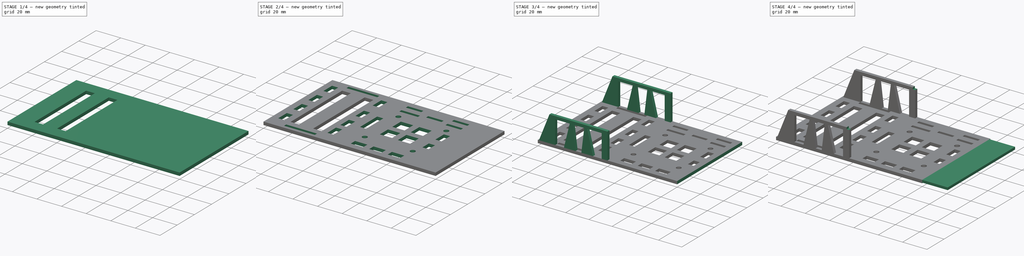
[diagram: build sequence overview — one tinted view per stage of 4, left to right]
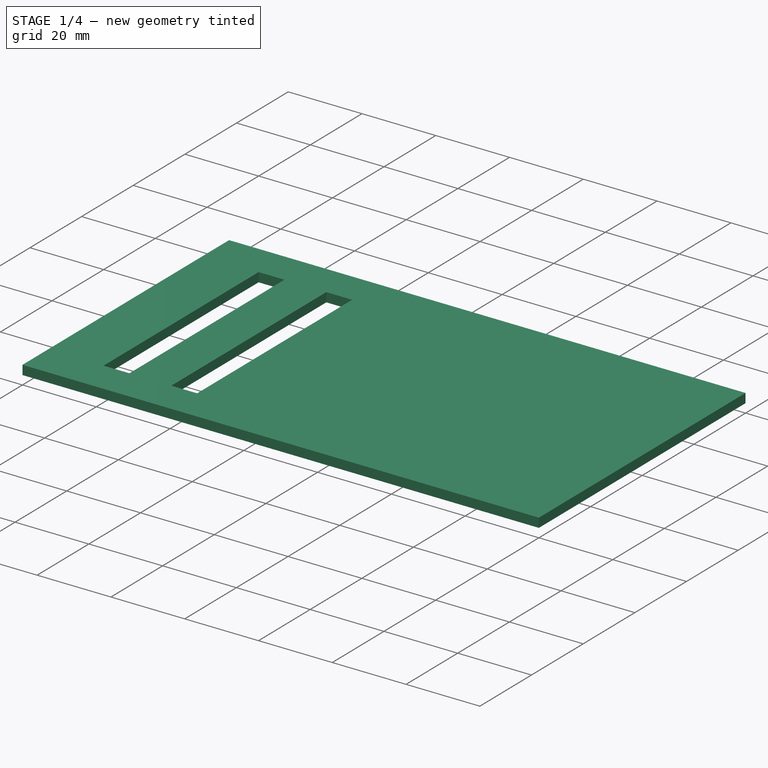
[diagram: stage 1 of 4 — iso view after this stage's code; geometry added in this stage tinted green]
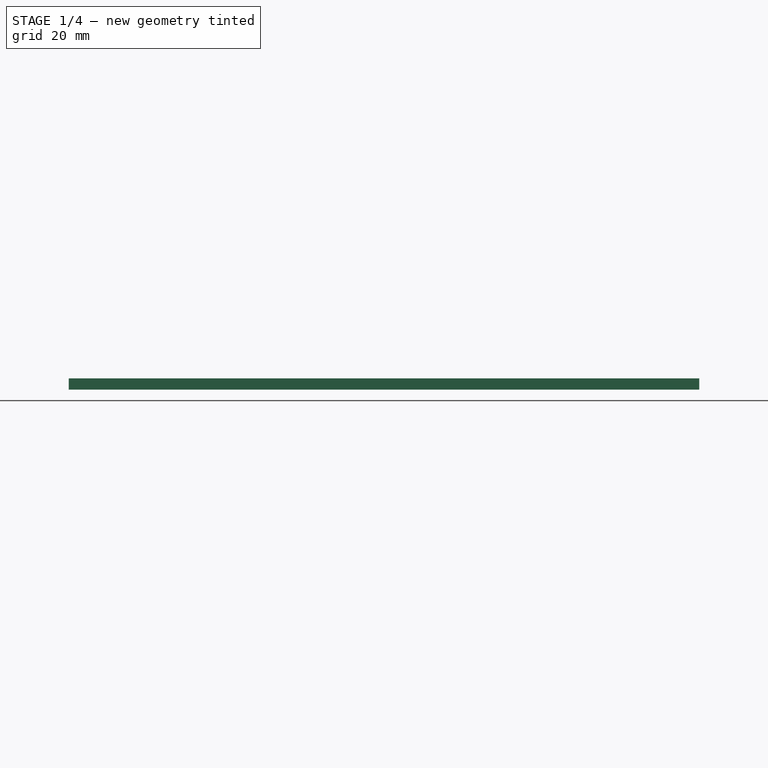
[diagram: stage 1 of 4 — front view after this stage's code; geometry added in this stage tinted green]
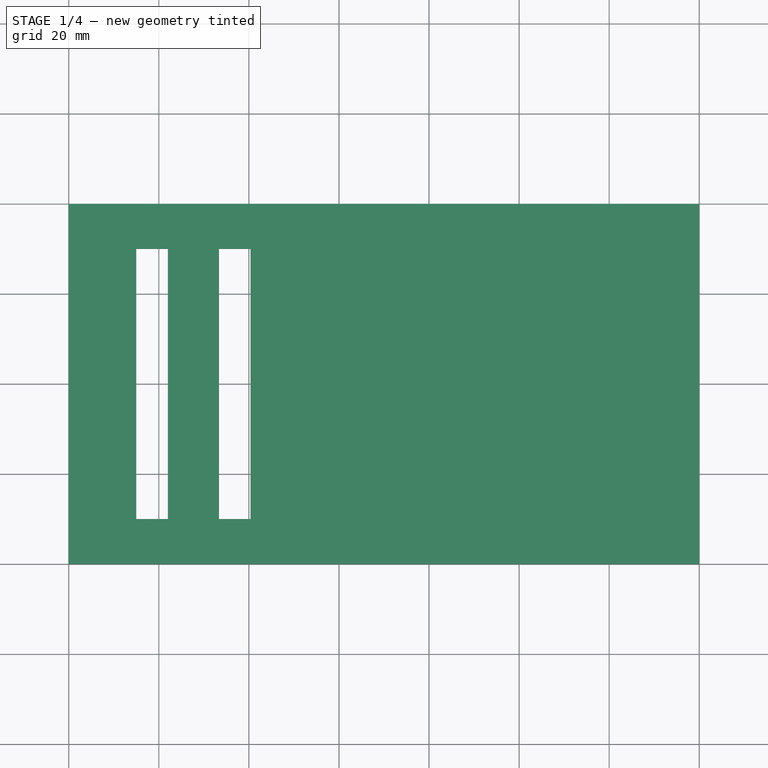
[diagram: stage 1 of 4 — top view after this stage's code; geometry added in this stage tinted green]
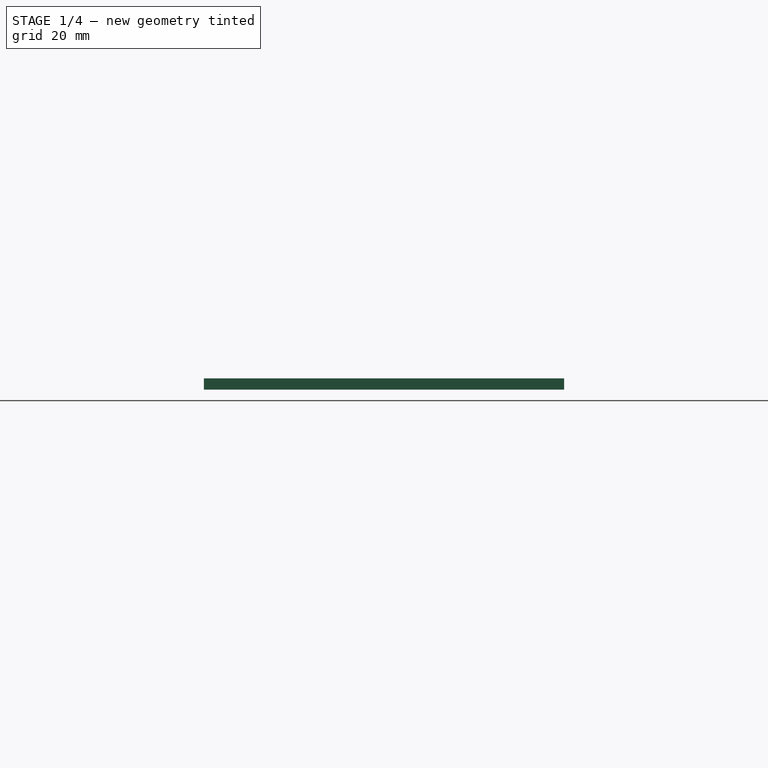
[diagram: stage 1 of 4 — right view after this stage's code; geometry added in this stage tinted green]
FCSTD DOCUMENT  (FreeCAD 0.19RUnknown)
Label: electro-holder
License: All rights reserved
LicenseURL: http://en.wikipedia.org/wiki/All_rights_reserved
objects: Sketcher::SketchObject×9, PartDesign::Pocket×5, PartDesign::Pad×4, PartDesign::Body×1
note: 28 computed .brp shape members not serialized (recipe doc carries the construction recipe); baked Part::Feature solids carry a one-line shape summary decoded from their .brp

FEATURE [Sketcher::SketchObject] Sketch
  FullyConstrained = false
  MapMode = 5
  Support = -> [XY_Plane]
  sketch-geometry (4):
    g0: LineSegment StartX=-60 StartY=0 StartZ=0 EndX=80 EndY=0 EndZ=0
    g1: LineSegment StartX=80 StartY=0 StartZ=0 EndX=80 EndY=80 EndZ=0
    g2: LineSegment StartX=80 StartY=80 StartZ=0 EndX=-60 EndY=80 EndZ=0
    g3: LineSegment StartX=-60 StartY=80 StartZ=0 EndX=-60 EndY=0 EndZ=0
  constraints (9):
    c: Coincident(g0,g1)
    c: Coincident(g1,g2)
    c: Coincident(g2,g3)
    c: Coincident(g3,g0)
    c: Horizontal(g0)
    c: Horizontal(g2)
    c: Vertical(g1)
    c: Vertical(g3)
    c: PointOnObject(g0,g-1)
FEATURE [PartDesign::Pad] Pad  label="GroundPlate"
  Direction = (1,1,1)
  Length = 2.5
  Length2 = 100
  Profile = -> Sketch
  Type = 0
FEATURE [Sketcher::SketchObject] Sketch001  label="Pin rows"
  FullyConstrained = false
  MapMode = 5
  Placement = pos=(0,0,0) rot=(1,0,0;3.14159rad)
  Support = -> [Pad]
  sketch-geometry (8):
    g0: LineSegment StartX=-45 StartY=-10 StartZ=0 EndX=-38 EndY=-10 EndZ=0
    g1: LineSegment StartX=-38 StartY=-10 StartZ=0 EndX=-38 EndY=-70 EndZ=0
    g2: LineSegment StartX=-38 StartY=-70 StartZ=0 EndX=-45 EndY=-70 EndZ=0
    g3: LineSegment StartX=-45 StartY=-70 StartZ=0 EndX=-45 EndY=-10 EndZ=0
    g4: LineSegment StartX=-26.64 StartY=-70 StartZ=0 EndX=-19.64 EndY=-70 EndZ=0
    g5: LineSegment StartX=-19.64 StartY=-70 StartZ=0 EndX=-19.64 EndY=-10 EndZ=0
    g6: LineSegment StartX=-19.64 StartY=-10 StartZ=0 EndX=-26.64 EndY=-10 EndZ=0
    g7: LineSegment StartX=-26.64 StartY=-10 StartZ=0 EndX=-26.64 EndY=-70 EndZ=0
  constraints (22):
    c: Coincident(g0,g1)
    c: Coincident(g1,g2)
    c: Coincident(g2,g3)
    c: Coincident(g3,g0)
    c: Horizontal(g0)
    c: Horizontal(g2)
    c: Vertical(g1)
    c: Vertical(g3)
    c: Coincident(g4,g5)
    c: Coincident(g5,g6)
    c: Coincident(g6,g7)
    c: Coincident(g7,g4)
    c: Horizontal(g4)
    c: Horizontal(g6)
    c: Vertical(g5)
    c: Vertical(g7)
    c: DistanceX(g6,g5) = 7
    c: DistanceX(g0,g0) = 7
    c: DistanceX(g0,g5) = 25.36
    c: DistanceY(g0,g6) = 0
    c: DistanceY(g2,g0) = 60
    c: Horizontal(g2,g4)
FEATURE [PartDesign::Pocket] Pocket  label="ESP32"
  BaseFeature = -> Pad
  Length = 2.5
  Length2 = 100
  Profile = -> Sketch001
  Type = 0
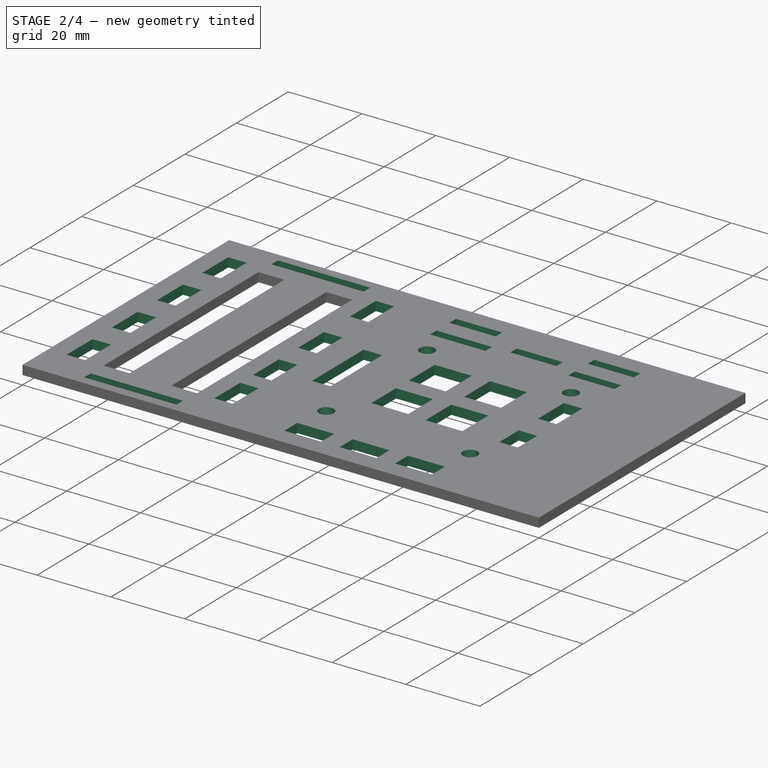
[diagram: stage 2 of 4 — iso view after this stage's code; geometry added in this stage tinted green]
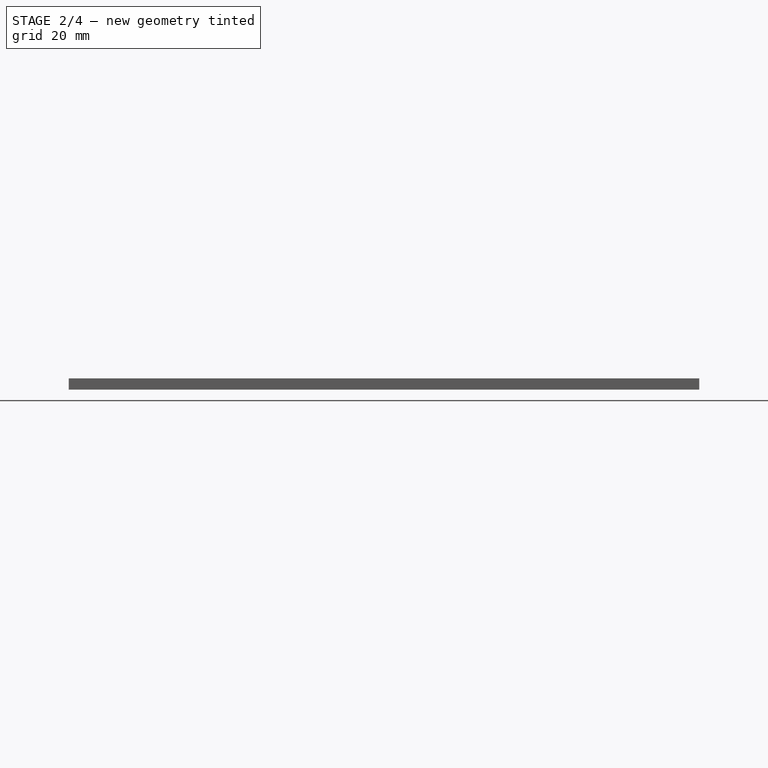
[diagram: stage 2 of 4 — front view after this stage's code; geometry added in this stage tinted green]
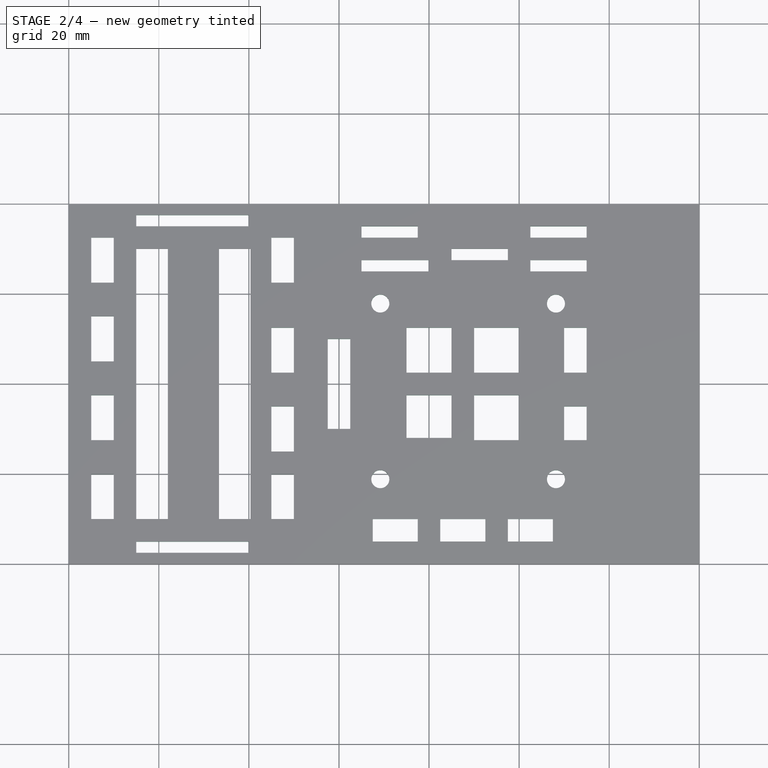
[diagram: stage 2 of 4 — top view after this stage's code; geometry added in this stage tinted green]
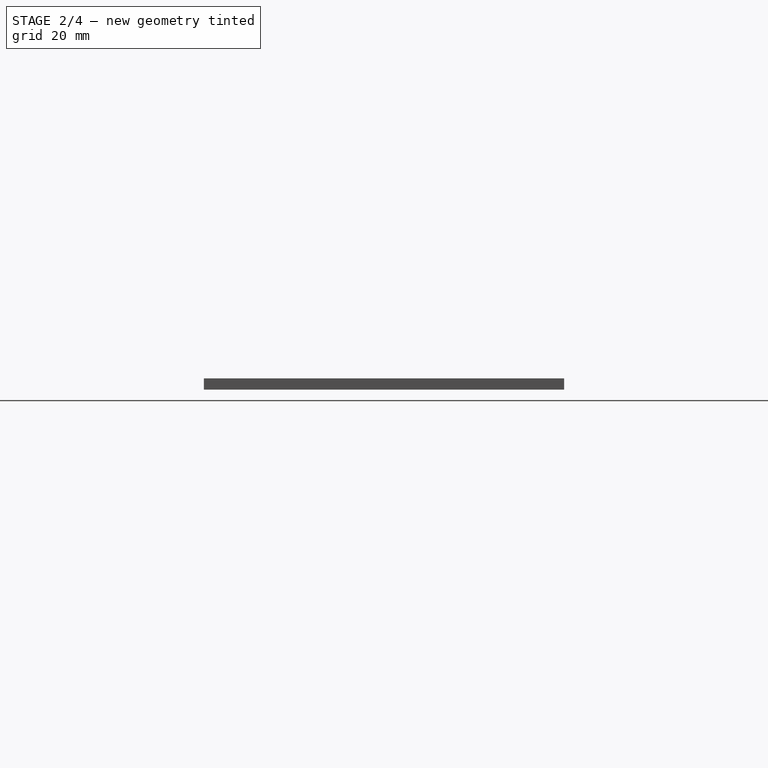
[diagram: stage 2 of 4 — right view after this stage's code; geometry added in this stage tinted green]
FEATURE [Sketcher::SketchObject] Sketch002
  FullyConstrained = false
  MapMode = 5
  Placement = pos=(0,0,0) rot=(1,0,0;3.14159rad)
  Support = -> [Pocket]
  sketch-geometry (7):
    g0: Circle CenterX=48.183 CenterY=-57.8502 CenterZ=0 NormalX=0 NormalY=0 NormalZ=1 AngleXU=0 Radius=2.00257
    g1: Circle CenterX=9.18301 CenterY=-57.8502 CenterZ=0 NormalX=0 NormalY=0 NormalZ=1 AngleXU=0 Radius=2.00257
    g2: LineSegment StartX=48.183 StartY=-57.8502 StartZ=0 EndX=9.18301 EndY=-57.8502 EndZ=0
    g3: Circle CenterX=48.183 CenterY=-18.8502 CenterZ=0 NormalX=0 NormalY=0 NormalZ=1 AngleXU=0 Radius=2.00257
    g4: LineSegment StartX=48.183 StartY=-57.8502 StartZ=0 EndX=48.183 EndY=-18.8502 EndZ=0
    g5: Circle CenterX=9.18301 CenterY=-18.8502 CenterZ=0 NormalX=0 NormalY=0 NormalZ=1 AngleXU=0 Radius=2.00257
    g6: LineSegment StartX=48.183 StartY=-18.8502 StartZ=0 EndX=9.18301 EndY=-18.8502 EndZ=0
  constraints (12):
    c: Coincident(g0,g2)
    c: Coincident(g1,g2)
    c: Distance(g2) = 39
    c: Angle(g2) = -3.14159
    c: Coincident(g0,g4)
    c: Coincident(g3,g4)
    c: Equal(g4,g2)
    c: Perpendicular(g4,g2)
    c: Coincident(g3,g6)
    c: Coincident(g5,g6)
    c: Equal(g2,g6)
    c: Parallel(g6,g2)
FEATURE [PartDesign::Pocket] Pocket001  label="HW-095"
  BaseFeature = -> Pocket
  Length = 2.5
  Length2 = 100
  Profile = -> Sketch002
  Type = 0
FEATURE [Sketcher::SketchObject] Sketch003
  FullyConstrained = false
  MapMode = 5
  Placement = pos=(0,0,0) rot=(1,0,0;3.14159rad)
  Support = -> [Pocket001]
  sketch-geometry (100):
    g0: LineSegment StartX=-55 StartY=-10 StartZ=0 EndX=-50 EndY=-10 EndZ=0
    g1: LineSegment StartX=-50 StartY=-10 StartZ=0 EndX=-50 EndY=-20 EndZ=0
    g2: LineSegment StartX=-50 StartY=-20 StartZ=0 EndX=-55 EndY=-20 EndZ=0
    g3: LineSegment StartX=-55 StartY=-20 StartZ=0 EndX=-55 EndY=-10 EndZ=0
    g4: LineSegment StartX=-55 StartY=-27.5 StartZ=0 EndX=-50 EndY=-27.5 EndZ=0
    g5: LineSegment StartX=-50 StartY=-27.5 StartZ=0 EndX=-50 EndY=-37.5 EndZ=0
    g6: LineSegment StartX=-50 StartY=-37.5 StartZ=0 EndX=-55 EndY=-37.5 EndZ=0
    g7: LineSegment StartX=-55 StartY=-37.5 StartZ=0 EndX=-55 EndY=-27.5 EndZ=0
    g8: LineSegment StartX=-55 StartY=-45 StartZ=0 EndX=-50 EndY=-45 EndZ=0
    g9: LineSegment StartX=-50 StartY=-45 StartZ=0 EndX=-50 EndY=-55 EndZ=0
    g10: LineSegment StartX=-50 StartY=-55 StartZ=0 EndX=-55 EndY=-55 EndZ=0
    g11: LineSegment StartX=-55 StartY=-55 StartZ=0 EndX=-55 EndY=-45 EndZ=0
    g12: LineSegment StartX=-55 StartY=-62.5 StartZ=0 EndX=-50 EndY=-62.5 EndZ=0
    g13: LineSegment StartX=-50 StartY=-62.5 StartZ=0 EndX=-50 EndY=-72.5 EndZ=0
    g14: LineSegment StartX=-50 StartY=-72.5 StartZ=0 EndX=-55 EndY=-72.5 EndZ=0
    g15: LineSegment StartX=-55 StartY=-72.5 StartZ=0 EndX=-55 EndY=-62.5 EndZ=0
    g16: LineSegment StartX=-15 StartY=-10 StartZ=0 EndX=-10 EndY=-10 EndZ=0
    g17: LineSegment StartX=-10 StartY=-10 StartZ=0 EndX=-10 EndY=-20 EndZ=0
    g18: LineSegment StartX=-10 StartY=-20 StartZ=0 EndX=-15 EndY=-20 EndZ=0
    g19: LineSegment StartX=-15 StartY=-20 StartZ=0 EndX=-15 EndY=-10 EndZ=0
    g20: LineSegment StartX=-15 StartY=-25 StartZ=0 EndX=-10 EndY=-25 EndZ=0
    g21: LineSegment StartX=-10 StartY=-25 StartZ=0 EndX=-10 EndY=-35 EndZ=0
    g22: LineSegment StartX=-10 StartY=-35 StartZ=0 EndX=-15 EndY=-35 EndZ=0
    g23: LineSegment StartX=-15 StartY=-35 StartZ=0 EndX=-15 EndY=-25 EndZ=0
    g24: LineSegment StartX=-15 StartY=-42.5 StartZ=0 EndX=-10 EndY=-42.5 EndZ=0
    g25: LineSegment StartX=-10 StartY=-42.5 StartZ=0 EndX=-10 EndY=-52.5 EndZ=0
    g26: LineSegment StartX=-10 StartY=-52.5 StartZ=0 EndX=-15 EndY=-52.5 EndZ=0
    g27: LineSegment StartX=-15 StartY=-52.5 StartZ=0 EndX=-15 EndY=-42.5 EndZ=0
    g28: LineSegment StartX=-15 StartY=-62.5 StartZ=0 EndX=-10 EndY=-62.5 EndZ=0
    g29: LineSegment StartX=-10 StartY=-62.5 StartZ=0 EndX=-10 EndY=-72.5 EndZ=0
    g30: LineSegment StartX=-10 StartY=-72.5 StartZ=0 EndX=-15 EndY=-72.5 EndZ=0
    g31: LineSegment StartX=-15 StartY=-72.5 StartZ=0 EndX=-15 EndY=-62.5 EndZ=0
    g32: LineSegment StartX=7.5 StartY=-5 StartZ=0 EndX=17.5 EndY=-5 EndZ=0
    g33: LineSegment StartX=17.5 StartY=-5 StartZ=0 EndX=17.5 EndY=-10 EndZ=0
    g34: LineSegment StartX=17.5 StartY=-10 StartZ=0 EndX=7.5 EndY=-10 EndZ=0
    g35: LineSegment StartX=7.5 StartY=-10 StartZ=0 EndX=7.5 EndY=-5 EndZ=0
    g36: LineSegment StartX=22.5 StartY=-5 StartZ=0 EndX=32.5 EndY=-5 EndZ=0
    g37: LineSegment StartX=32.5 StartY=-5 StartZ=0 EndX=32.5 EndY=-10 EndZ=0
    g38: LineSegment StartX=32.5 StartY=-10 StartZ=0 EndX=22.5 EndY=-10 EndZ=0
    g39: LineSegment StartX=22.5 StartY=-10 StartZ=0 EndX=22.5 EndY=-5 EndZ=0
    g40: LineSegment StartX=37.5 StartY=-5 StartZ=0 EndX=47.5 EndY=-5 EndZ=0
    g41: LineSegment StartX=47.5 StartY=-5 StartZ=0 EndX=47.5 EndY=-10 EndZ=0
    g42: LineSegment StartX=47.5 StartY=-10 StartZ=0 EndX=37.5 EndY=-10 EndZ=0
    g43: LineSegment StartX=37.5 StartY=-10 StartZ=0 EndX=37.5 EndY=-5 EndZ=0
    g44: LineSegment StartX=50 StartY=-27.5 StartZ=0 EndX=55 EndY=-27.5 EndZ=0
    g45: LineSegment StartX=55 StartY=-27.5 StartZ=0 EndX=55 EndY=-35 EndZ=0
    g46: LineSegment StartX=55 StartY=-35 StartZ=0 EndX=50 EndY=-35 EndZ=0
    g47: LineSegment StartX=50 StartY=-35 StartZ=0 EndX=50 EndY=-27.5 EndZ=0
    g48: LineSegment StartX=50 StartY=-42.5 StartZ=0 EndX=55 EndY=-42.5 EndZ=0
    g49: LineSegment StartX=55 StartY=-42.5 StartZ=0 EndX=55 EndY=-52.5 EndZ=0
    g50: LineSegment StartX=55 StartY=-52.5 StartZ=0 EndX=50 EndY=-52.5 EndZ=0
    g51: LineSegment StartX=50 StartY=-52.5 StartZ=0 EndX=50 EndY=-42.5 EndZ=0
    g52: LineSegment StartX=-2.5 StartY=-30 StartZ=0 EndX=2.5 EndY=-30 EndZ=0
    g53: LineSegment StartX=2.5 StartY=-30 StartZ=0 EndX=2.5 EndY=-50 EndZ=0
    g54: LineSegment StartX=2.5 StartY=-50 StartZ=0 EndX=-2.5 EndY=-50 EndZ=0
    g55: LineSegment StartX=-2.5 StartY=-50 StartZ=0 EndX=-2.5 EndY=-30 EndZ=0
    g56: LineSegment StartX=15 StartY=-28.0178 StartZ=0 EndX=25 EndY=-28.0178 EndZ=0
    g57: LineSegment StartX=25 StartY=-28.0178 StartZ=0 EndX=25 EndY=-37.5 EndZ=0
    g58: LineSegment StartX=25 StartY=-37.5 StartZ=0 EndX=15 EndY=-37.5 EndZ=0
    g59: LineSegment StartX=15 StartY=-37.5 StartZ=0 EndX=15 EndY=-28.0178 EndZ=0
    g60: LineSegment StartX=30 StartY=-27.5 StartZ=0 EndX=40 EndY=-27.5 EndZ=0
    g61: LineSegment StartX=40 StartY=-27.5 StartZ=0 EndX=40 EndY=-37.5 EndZ=0
    g62: LineSegment StartX=40 StartY=-37.5 StartZ=0 EndX=30 EndY=-37.5 EndZ=0
    g63: LineSegment StartX=30 StartY=-37.5 StartZ=0 EndX=30 EndY=-27.5 EndZ=0
    g64: LineSegment StartX=15 StartY=-42.5 StartZ=0 EndX=25 EndY=-42.5 EndZ=0
    g65: LineSegment StartX=25 StartY=-42.5 StartZ=0 EndX=25 EndY=-52.5 EndZ=0
    g66: LineSegment StartX=25 StartY=-52.5 StartZ=0 EndX=15 EndY=-52.5 EndZ=0
    g67: LineSegment StartX=15 StartY=-52.5 StartZ=0 EndX=15 EndY=-42.5 EndZ=0
    g68: LineSegment StartX=30 StartY=-42.5 StartZ=0 EndX=40 EndY=-42.5 EndZ=0
    g69: LineSegment StartX=40 StartY=-42.5 StartZ=0 EndX=40 EndY=-52.5 EndZ=0
    g70: LineSegment StartX=40 StartY=-52.5 StartZ=0 EndX=30 EndY=-52.5 EndZ=0
    g71: LineSegment StartX=30 StartY=-52.5 StartZ=0 EndX=30 EndY=-42.5 EndZ=0
    g72: LineSegment StartX=5 StartY=-65 StartZ=0 EndX=20 EndY=-65 EndZ=0
    g73: LineSegment StartX=20 StartY=-65 StartZ=0 EndX=20 EndY=-67.5 EndZ=0
    g74: LineSegment StartX=20 StartY=-67.5 StartZ=0 EndX=5 EndY=-67.5 EndZ=0
    g75: LineSegment StartX=5 StartY=-67.5 StartZ=0 EndX=5 EndY=-65 EndZ=0
    g76: LineSegment StartX=25 StartY=-67.5 StartZ=0 EndX=37.5 EndY=-67.5 EndZ=0
    g77: LineSegment StartX=37.5 StartY=-67.5 StartZ=0 EndX=37.5 EndY=-70 EndZ=0
    g78: LineSegment StartX=37.5 StartY=-70 StartZ=0 EndX=25 EndY=-70 EndZ=0
    g79: LineSegment StartX=25 StartY=-70 StartZ=0 EndX=25 EndY=-67.5 EndZ=0
    g80: LineSegment StartX=42.5 StartY=-65 StartZ=0 EndX=55 EndY=-65 EndZ=0
    g81: LineSegment StartX=55 StartY=-65 StartZ=0 EndX=55 EndY=-67.5 EndZ=0
    g82: LineSegment StartX=55 StartY=-67.5 StartZ=0 EndX=42.5 EndY=-67.5 EndZ=0
    g83: LineSegment StartX=42.5 StartY=-67.5 StartZ=0 EndX=42.5 EndY=-65 EndZ=0
    g84: LineSegment StartX=5 StartY=-72.5 StartZ=0 EndX=17.5 EndY=-72.5 EndZ=0
    g85: LineSegment StartX=17.5 StartY=-72.5 StartZ=0 EndX=17.5 EndY=-75 EndZ=0
    g86: LineSegment StartX=17.5 StartY=-75 StartZ=0 EndX=5 EndY=-75 EndZ=0
    g87: LineSegment StartX=5 StartY=-75 StartZ=0 EndX=5 EndY=-72.5 EndZ=0
    g88: LineSegment StartX=42.5 StartY=-72.5 StartZ=0 EndX=55 EndY=-72.5 EndZ=0
    g89: LineSegment StartX=55 StartY=-72.5 StartZ=0 EndX=55 EndY=-75 EndZ=0
    g90: LineSegment StartX=55 StartY=-75 StartZ=0 EndX=42.5 EndY=-75 EndZ=0
    g91: LineSegment StartX=42.5 StartY=-75 StartZ=0 EndX=42.5 EndY=-72.5 EndZ=0
    g92: LineSegment StartX=-45 StartY=-2.5 StartZ=0 EndX=-20 EndY=-2.5 EndZ=0
    g93: LineSegment StartX=-20 StartY=-2.5 StartZ=0 EndX=-20 EndY=-5 EndZ=0
    g94: LineSegment StartX=-20 StartY=-5 StartZ=0 EndX=-45 EndY=-5 EndZ=0
    g95: LineSegment StartX=-45 StartY=-5 StartZ=0 EndX=-45 EndY=-2.5 EndZ=0
    g96: LineSegment StartX=-45 StartY=-75 StartZ=0 EndX=-20 EndY=-75 EndZ=0
    g97: LineSegment StartX=-20 StartY=-75 StartZ=0 EndX=-20 EndY=-77.5 EndZ=0
    g98: LineSegment StartX=-20 StartY=-77.5 StartZ=0 EndX=-45 EndY=-77.5 EndZ=0
    g99: LineSegment StartX=-45 StartY=-77.5 StartZ=0 EndX=-45 EndY=-75 EndZ=0
  constraints (200):
    c: Coincident(g0,g1)
    c: Coincident(g1,g2)
    c: Coincident(g2,g3)
    c: Coincident(g3,g0)
    c: Horizontal(g0)
    c: Horizontal(g2)
    c: Vertical(g1)
    c: Vertical(g3)
    c: Coincident(g4,g5)
    c: Coincident(g5,g6)
    c: Coincident(g6,g7)
    c: Coincident(g7,g4)
    c: Horizontal(g4)
    c: Horizontal(g6)
    c: Vertical(g5)
    c: Vertical(g7)
    c: Coincident(g8,g9)
    c: Coincident(g9,g10)
    c: Coincident(g10,g11)
    c: Coincident(g11,g8)
    c: Horizontal(g8)
    c: Horizontal(g10)
    c: Vertical(g9)
    c: Vertical(g11)
    c: Coincident(g12,g13)
    c: Coincident(g13,g14)
    c: Coincident(g14,g15)
    c: Coincident(g15,g12)
    c: Horizontal(g12)
    c: Horizontal(g14)
    c: Vertical(g13)
    c: Vertical(g15)
    c: Coincident(g16,g17)
    c: Coincident(g17,g18)
    c: Coincident(g18,g19)
    c: Coincident(g19,g16)
    c: Horizontal(g16)
    c: Horizontal(g18)
    c: Vertical(g17)
    c: Vertical(g19)
    c: Coincident(g20,g21)
    c: Coincident(g21,g22)
    c: Coincident(g22,g23)
    c: Coincident(g23,g20)
    c: Horizontal(g20)
    c: Horizontal(g22)
    c: Vertical(g21)
    c: Vertical(g23)
    c: Coincident(g24,g25)
    c: Coincident(g25,g26)
    c: Coincident(g26,g27)
    c: Coincident(g27,g24)
    c: Horizontal(g24)
    c: Horizontal(g26)
    c: Vertical(g25)
    c: Vertical(g27)
    c: Coincident(g28,g29)
    c: Coincident(g29,g30)
    c: Coincident(g30,g31)
    c: Coincident(g31,g28)
    c: Horizontal(g28)
    c: Horizontal(g30)
    c: Vertical(g29)
    c: Vertical(g31)
    c: Coincident(g32,g33)
    c: Coincident(g33,g34)
    c: Coincident(g34,g35)
    c: Coincident(g35,g32)
    c: Horizontal(g32)
    c: Horizontal(g34)
    c: Vertical(g33)
    c: Vertical(g35)
    c: Coincident(g36,g37)
    c: Coincident(g37,g38)
    c: Coincident(g38,g39)
    c: Coincident(g39,g36)
    c: Horizontal(g36)
    c: Horizontal(g38)
    c: Vertical(g37)
    c: Vertical(g39)
    c: Coincident(g40,g41)
    c: Coincident(g41,g42)
    c: Coincident(g42,g43)
    c: Coincident(g43,g40)
    c: Horizontal(g40)
    c: Horizontal(g42)
    c: Vertical(g41)
    c: Vertical(g43)
    c: Coincident(g44,g45)
    c: Coincident(g45,g46)
    c: Coincident(g46,g47)
    c: Coincident(g47,g44)
    c: Horizontal(g44)
    c: Horizontal(g46)
    c: Vertical(g45)
    c: Vertical(g47)
    c: Coincident(g48,g49)
    c: Coincident(g49,g50)
    c: Coincident(g50,g51)
    c: Coincident(g51,g48)
    c: Horizontal(g48)
    c: Horizontal(g50)
    c: Vertical(g49)
    c: Vertical(g51)
    c: Coincident(g52,g53)
    c: Coincident(g53,g54)
    c: Coincident(g54,g55)
    c: Coincident(g55,g52)
    c: Horizontal(g52)
    c: Horizontal(g54)
    c: Vertical(g53)
    c: Vertical(g55)
    c: Coincident(g56,g57)
    c: Coincident(g57,g58)
    c: Coincident(g58,g59)
    c: Coincident(g59,g56)
    c: Horizontal(g56)
    c: Horizontal(g58)
    c: Vertical(g57)
    c: Vertical(g59)
    c: Coincident(g60,g61)
    c: Coincident(g61,g62)
    c: Coincident(g62,g63)
    c: Coincident(g63,g60)
    c: Horizontal(g60)
    c: Horizontal(g62)
    c: Vertical(g61)
    c: Vertical(g63)
    c: Coincident(g64,g65)
    c: Coincident(g65,g66)
    c: Coincident(g66,g67)
    c: Coincident(g67,g64)
    c: Horizontal(g64)
    c: Horizontal(g66)
    c: Vertical(g65)
    c: Vertical(g67)
    c: Coincident(g68,g69)
    c: Coincident(g69,g70)
    c: Coincident(g70,g71)
    c: Coincident(g71,g68)
    c: Horizontal(g68)
    c: Horizontal(g70)
    c: Vertical(g69)
    c: Vertical(g71)
    c: Coincident(g72,g73)
    c: Coincident(g73,g74)
    c: Coincident(g74,g75)
    c: Coincident(g75,g72)
    c: Horizontal(g72)
    c: Horizontal(g74)
    c: Vertical(g73)
    c: Vertical(g75)
    c: Coincident(g76,g77)
    c: Coincident(g77,g78)
    c: Coincident(g78,g79)
    c: Coincident(g79,g76)
    c: Horizontal(g76)
    c: Horizontal(g78)
    c: Vertical(g77)
    c: Vertical(g79)
    c: Coincident(g80,g81)
    c: Coincident(g81,g82)
    c: Coincident(g82,g83)
    c: Coincident(g83,g80)
    c: Horizontal(g80)
    c: Horizontal(g82)
    c: Vertical(g81)
    c: Vertical(g83)
    c: Coincident(g84,g85)
    c: Coincident(g85,g86)
    c: Coincident(g86,g87)
    c: Coincident(g87,g84)
    c: Horizontal(g84)
    c: Horizontal(g86)
    c: Vertical(g85)
    c: Vertical(g87)
    c: Coincident(g88,g89)
    c: Coincident(g89,g90)
    c: Coincident(g90,g91)
    c: Coincident(g91,g88)
    c: Horizontal(g88)
    c: Horizontal(g90)
    c: Vertical(g89)
    c: Vertical(g91)
    c: Coincident(g92,g93)
    c: Coincident(g93,g94)
    c: Coincident(g94,g95)
    c: Coincident(g95,g92)
    c: Horizontal(g92)
    c: Horizontal(g94)
    c: Vertical(g93)
    c: Vertical(g95)
    c: Coincident(g96,g97)
    c: Coincident(g97,g98)
    c: Coincident(g98,g99)
    c: Coincident(g99,g96)
    c: Horizontal(g96)
    c: Horizontal(g98)
    c: Vertical(g97)
    c: Vertical(g99)
FEATURE [PartDesign::Pocket] Pocket002  label="Holes"
  BaseFeature = -> Pocket001
  Length = 2.5
  Length2 = 100
  Profile = -> Sketch003
  Type = 0
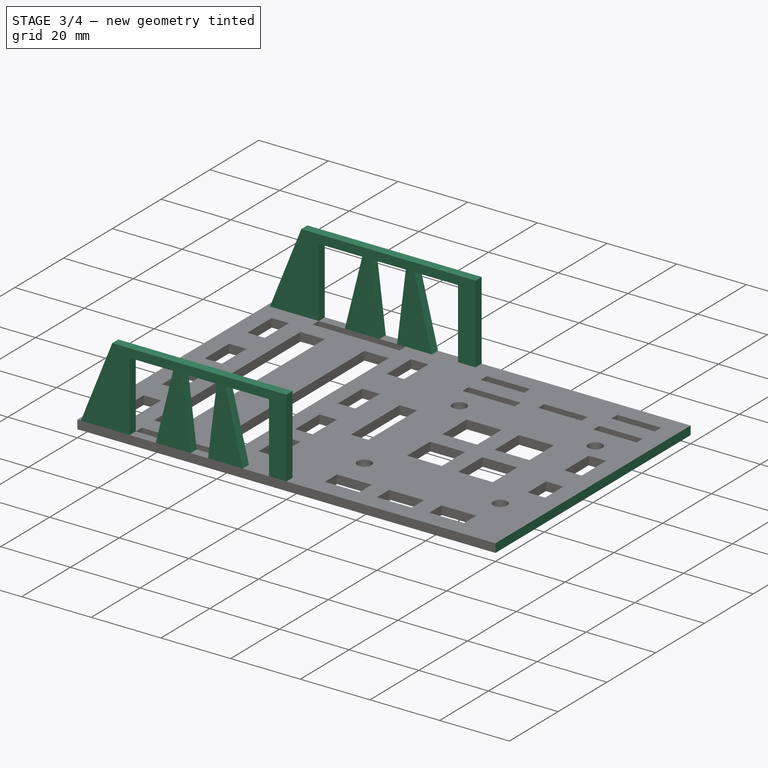
[diagram: stage 3 of 4 — iso view after this stage's code; geometry added in this stage tinted green]
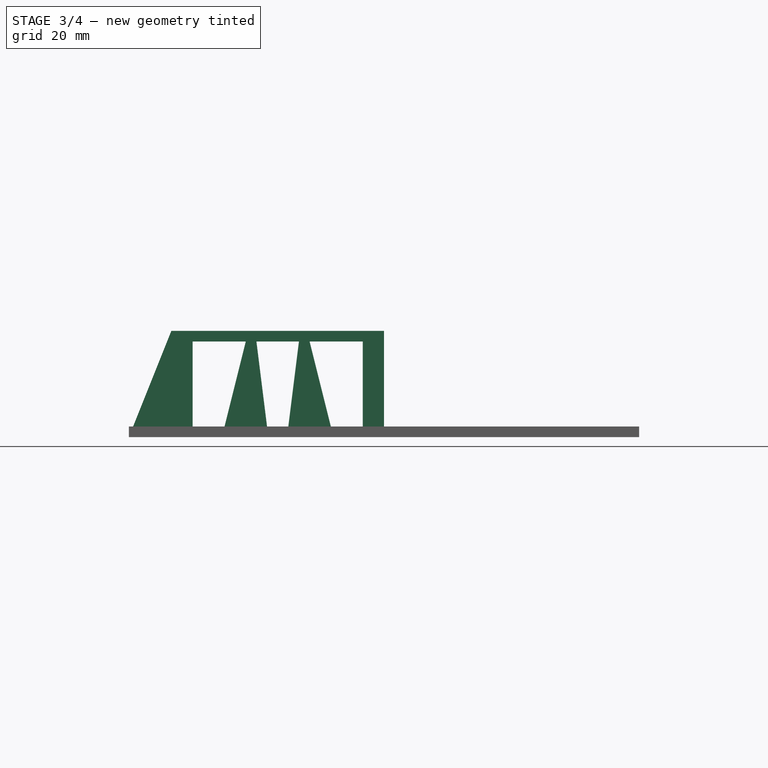
[diagram: stage 3 of 4 — front view after this stage's code; geometry added in this stage tinted green]
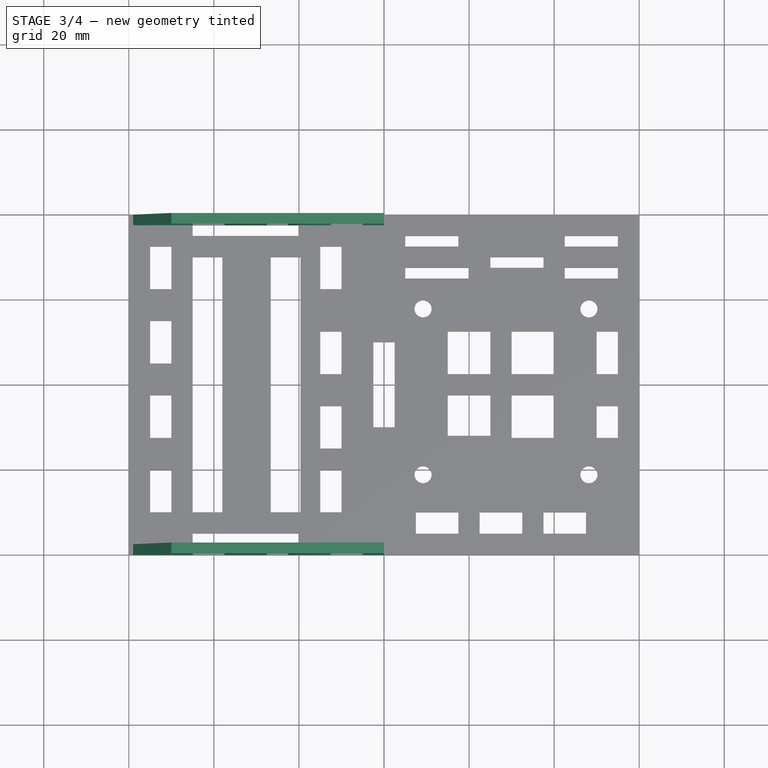
[diagram: stage 3 of 4 — top view after this stage's code; geometry added in this stage tinted green]
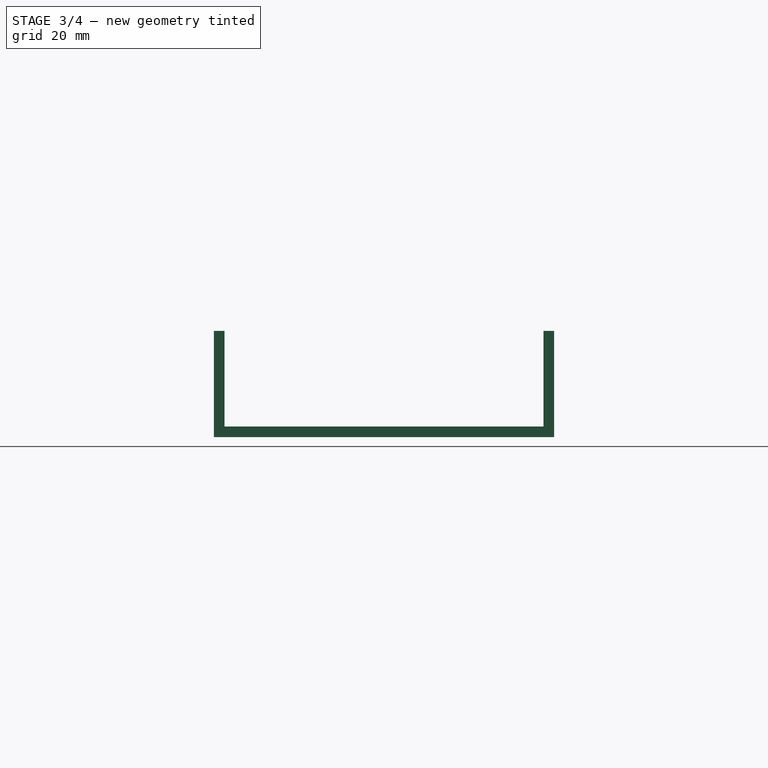
[diagram: stage 3 of 4 — right view after this stage's code; geometry added in this stage tinted green]
FEATURE [Sketcher::SketchObject] Sketch004
  FullyConstrained = false
  MapMode = 5
  Placement = pos=(0,0,0) rot=(1,0,0;1.5708rad)
  Support = -> [Pocket002]
  sketch-geometry (4):
    g0: LineSegment StartX=-60 StartY=0 StartZ=0 EndX=-50 EndY=25 EndZ=0
    g1: LineSegment StartX=-50 StartY=25 StartZ=0 EndX=0 EndY=25 EndZ=0
    g2: LineSegment StartX=0 StartY=25 StartZ=0 EndX=0 EndY=0 EndZ=0
    g3: LineSegment StartX=0 StartY=0 StartZ=0 EndX=-60 EndY=0 EndZ=0
  constraints (9):
    c: PointOnObject(g0,g-1)
    c: Coincident(g0,g1)
    c: Horizontal(g1)
    c: Coincident(g1,g2)
    c: Coincident(g2,g-1)
    c: Vertical(g2)
    c: Coincident(g2,g3)
    c: Coincident(g3,g0)
    c: Horizontal(g3)
FEATURE [PartDesign::Pad] Pad001  label="stand left"
  BaseFeature = -> Pocket002
  Direction = (1,1,1)
  Length = 2.5
  Length2 = 100
  Profile = -> Sketch004
  Reversed = true
  Type = 0
FEATURE [Sketcher::SketchObject] Sketch005
  FullyConstrained = false
  MapMode = 5
  Placement = pos=(0,80,0) rot=(0,0.707107,0.707107;3.14159rad)
  Support = -> [Pad001]
  sketch-geometry (4):
    g0: LineSegment StartX=60 StartY=0 StartZ=0 EndX=50 EndY=25 EndZ=0
    g1: LineSegment StartX=50 StartY=25 StartZ=0 EndX=0 EndY=25 EndZ=0
    g2: LineSegment StartX=0 StartY=25 StartZ=0 EndX=0 EndY=0 EndZ=0
    g3: LineSegment StartX=0 StartY=0 StartZ=0 EndX=60 EndY=0 EndZ=0
  constraints (9):
    c: PointOnObject(g0,g-1)
    c: Coincident(g0,g1)
    c: Horizontal(g1)
    c: Coincident(g1,g2)
    c: PointOnObject(g2,g-2)
    c: Vertical(g2)
    c: Coincident(g2,g3)
    c: Coincident(g3,g0)
    c: Horizontal(g3)
FEATURE [PartDesign::Pad] Pad002  label="stand right"
  BaseFeature = -> Pad001
  Direction = (1,1,1)
  Length = 2.5
  Length2 = 100
  Profile = -> Sketch005
  Reversed = true
  Type = 0
FEATURE [Sketcher::SketchObject] Sketch006
  FullyConstrained = false
  MapMode = 5
  Placement = pos=(0,80,0) rot=(0,0.707107,0.707107;3.14159rad)
  Support = -> [Pad002]
  sketch-geometry (12):
    g0: LineSegment StartX=5 StartY=22.5 StartZ=0 EndX=5 EndY=2.5 EndZ=0
    g1: LineSegment StartX=5 StartY=2.5 StartZ=0 EndX=12.5 EndY=2.5 EndZ=0
    g2: LineSegment StartX=12.5 StartY=2.5 StartZ=0 EndX=15 EndY=22.5 EndZ=0
    g3: LineSegment StartX=15 StartY=22.5 StartZ=0 EndX=5 EndY=22.5 EndZ=0
    g4: LineSegment StartX=17.5 StartY=25 StartZ=0 EndX=22.5 EndY=2.5 EndZ=0
    g5: LineSegment StartX=22.5 StartY=2.5 StartZ=0 EndX=27.5 EndY=2.5 EndZ=0
    g6: LineSegment StartX=27.5 StartY=2.5 StartZ=0 EndX=32.5 EndY=25 EndZ=0
    g7: LineSegment StartX=32.5 StartY=25 StartZ=0 EndX=17.5 EndY=25 EndZ=0
    g8: LineSegment StartX=35 StartY=22.5 StartZ=0 EndX=37.5 EndY=2.5 EndZ=0
    g9: LineSegment StartX=37.5 StartY=2.5 StartZ=0 EndX=45 EndY=2.5 EndZ=0
    g10: LineSegment StartX=45 StartY=2.5 StartZ=0 EndX=45 EndY=22.5 EndZ=0
    g11: LineSegment StartX=45 StartY=22.5 StartZ=0 EndX=35 EndY=22.5 EndZ=0
  constraints (20):
    c: Vertical(g0)
    c: Coincident(g0,g1)
    c: Horizontal(g1)
    c: Coincident(g1,g2)
    c: Coincident(g2,g3)
    c: Coincident(g3,g0)
    c: Horizontal(g3)
    c: Coincident(g4,g5)
    c: Horizontal(g5)
    c: Coincident(g5,g6)
    c: Coincident(g6,g7)
    c: Coincident(g7,g4)
    c: Horizontal(g7)
    c: Coincident(g8,g9)
    c: Horizontal(g9)
    c: Coincident(g9,g10)
    c: Vertical(g10)
    c: Coincident(g10,g11)
    c: Coincident(g11,g8)
    c: Horizontal(g11)
FEATURE [PartDesign::Pocket] Pocket003
  BaseFeature = -> Pad002
  Length = 499
  Length2 = 100
  Midplane = true
  Profile = -> Sketch006
  Type = 0
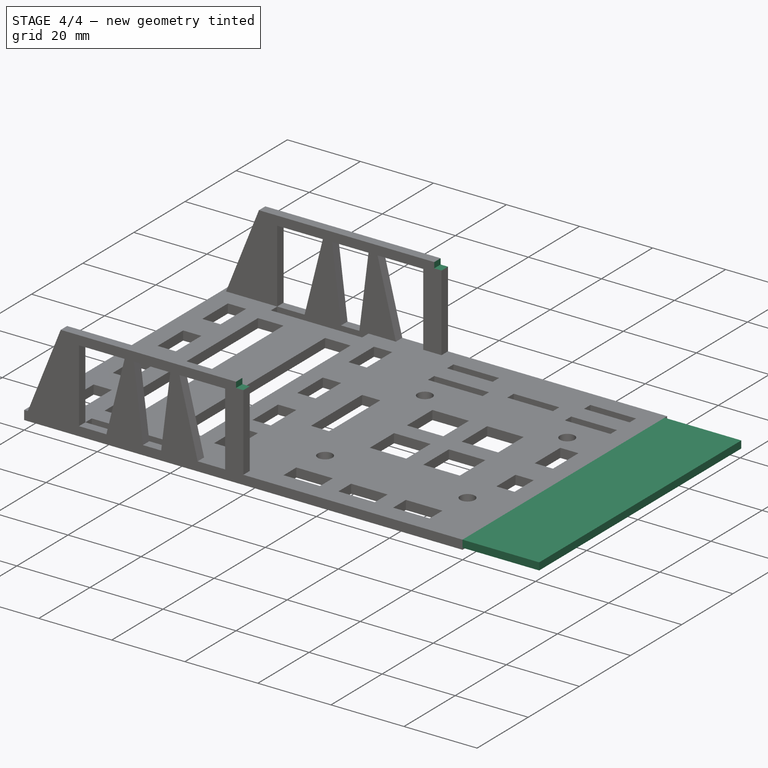
[diagram: stage 4 of 4 — iso view after this stage's code; geometry added in this stage tinted green]
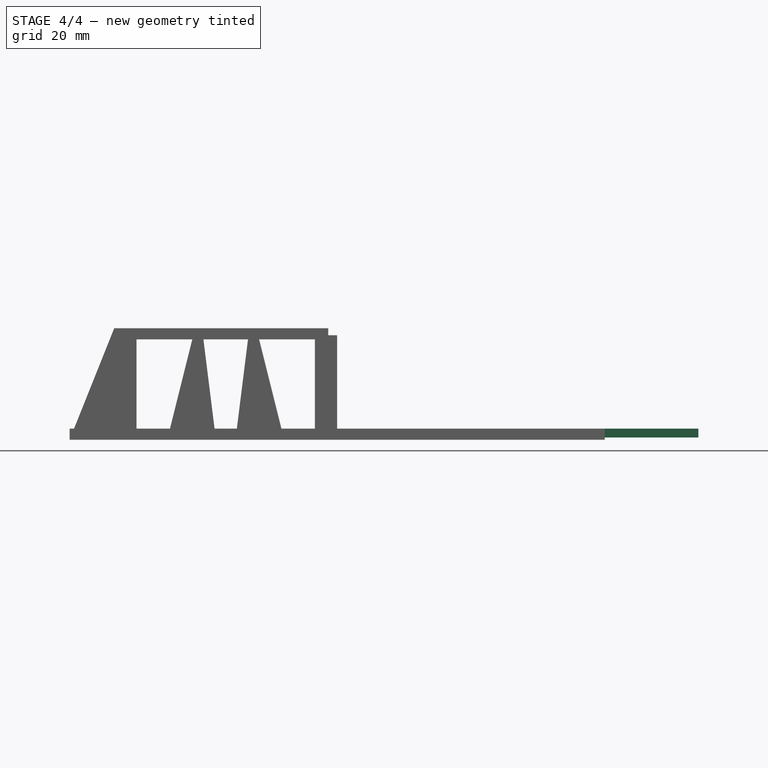
[diagram: stage 4 of 4 — front view after this stage's code; geometry added in this stage tinted green]
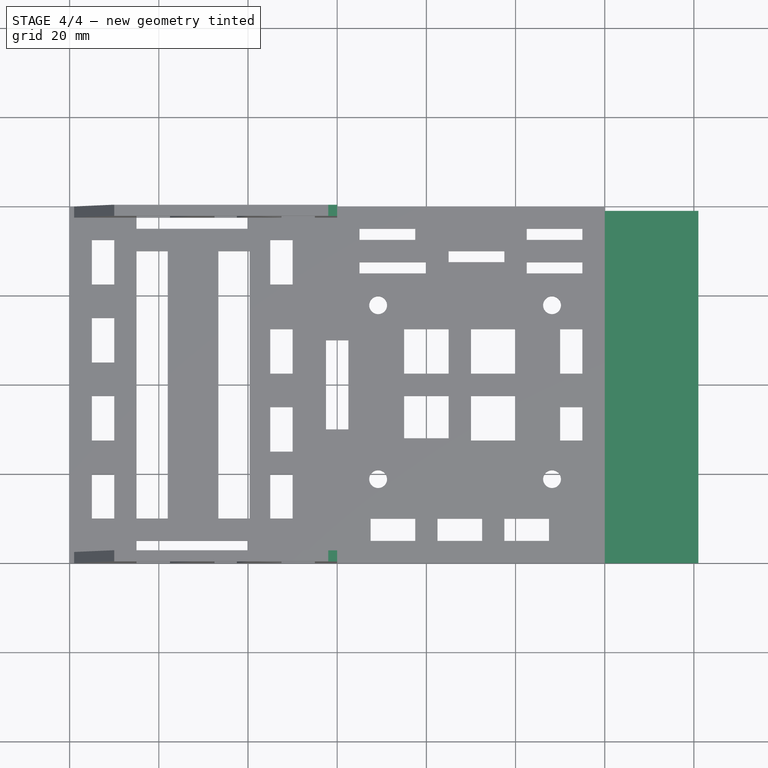
[diagram: stage 4 of 4 — top view after this stage's code; geometry added in this stage tinted green]
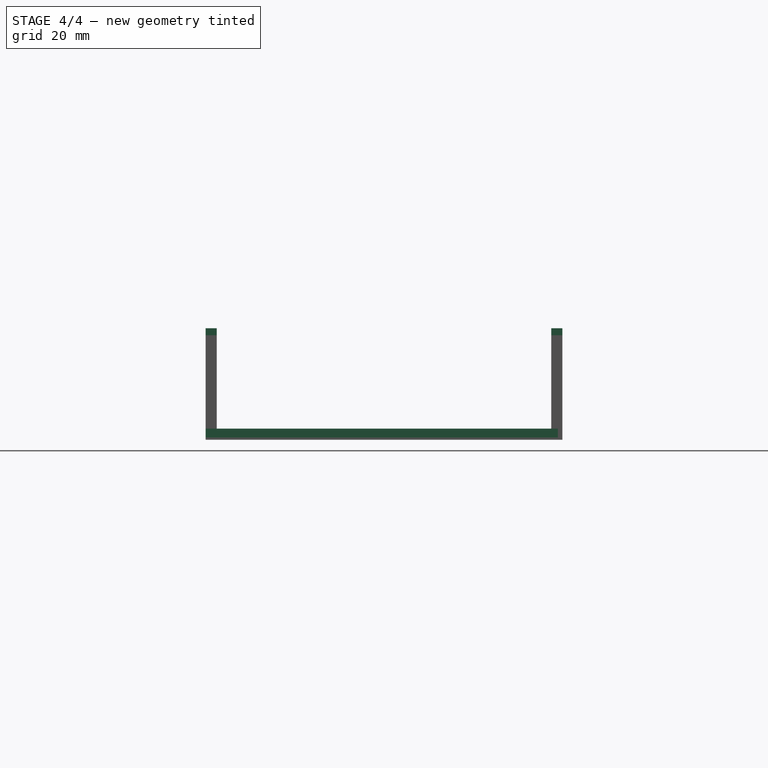
[diagram: stage 4 of 4 — right view after this stage's code; geometry added in this stage tinted green]
FEATURE [Sketcher::SketchObject] Sketch007
  FullyConstrained = false
  MapMode = 5
  Placement = pos=(0,0,2.5) rot=(0,0,1;0rad)
  Support = -> [Pocket003]
  sketch-geometry (4):
    g0: LineSegment StartX=58 StartY=79 StartZ=0 EndX=81 EndY=79 EndZ=0
    g1: LineSegment StartX=81 StartY=79 StartZ=0 EndX=81 EndY=0 EndZ=0
    g2: LineSegment StartX=81 StartY=0 StartZ=0 EndX=58 EndY=0 EndZ=0
    g3: LineSegment StartX=58 StartY=0 StartZ=0 EndX=58 EndY=79 EndZ=0
  constraints (9):
    c: Coincident(g0,g1)
    c: Coincident(g1,g2)
    c: Coincident(g2,g3)
    c: Coincident(g3,g0)
    c: Horizontal(g0)
    c: Horizontal(g2)
    c: Vertical(g1)
    c: Vertical(g3)
    c: PointOnObject(g1,g-1)
FEATURE [PartDesign::Pad] Pad003
  BaseFeature = -> Pocket003
  Direction = (1,1,1)
  Length = 2
  Length2 = 100
  Profile = -> Sketch007
  Reversed = true
  Type = 0
FEATURE [Sketcher::SketchObject] Sketch008
  FullyConstrained = false
  MapMode = 5
  Placement = pos=(0,80,0) rot=(0,0.707107,0.707107;3.14159rad)
  Support = -> [Pad003]
  sketch-geometry (4):
    g0: LineSegment StartX=0 StartY=25 StartZ=0 EndX=2 EndY=25 EndZ=0
    g1: LineSegment StartX=2 StartY=25 StartZ=0 EndX=2 EndY=23.4453 EndZ=0
    g2: LineSegment StartX=2 StartY=23.4453 StartZ=0 EndX=0 EndY=23.4453 EndZ=0
    g3: LineSegment StartX=0 StartY=23.4453 StartZ=0 EndX=0 EndY=25 EndZ=0
  constraints (9):
    c: Coincident(g0,g1)
    c: Coincident(g1,g2)
    c: Coincident(g2,g3)
    c: Coincident(g3,g0)
    c: Horizontal(g0)
    c: Horizontal(g2)
    c: Vertical(g1)
    c: Vertical(g3)
    c: PointOnObject(g0,g-2)
FEATURE [PartDesign::Pocket] Pocket004
  BaseFeature = -> Pad003
  Length = 500
  Length2 = 100
  Profile = -> Sketch008
  Type = 0
FEATURE [PartDesign::Body] Body  label="Chassis"
  Group = -> [Sketch,Pad,Sketch001,Pocket,Sketch002,Pocket001,Sketch003,Pocket002,Sketch004,Pad001,Sketch005,Pad002,Sketch006,Pocket003,Sketch007,Pad003,Sketch008,Pocket004]
  Origin = -> Origin
  Tip = -> Pocket004
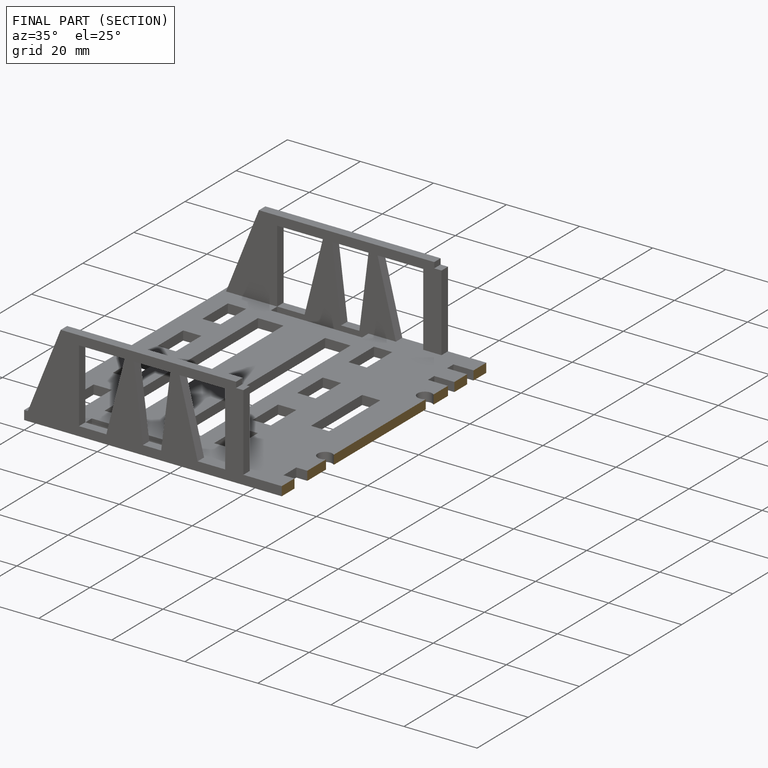
[diagram: finished part — half-section view (interior)]
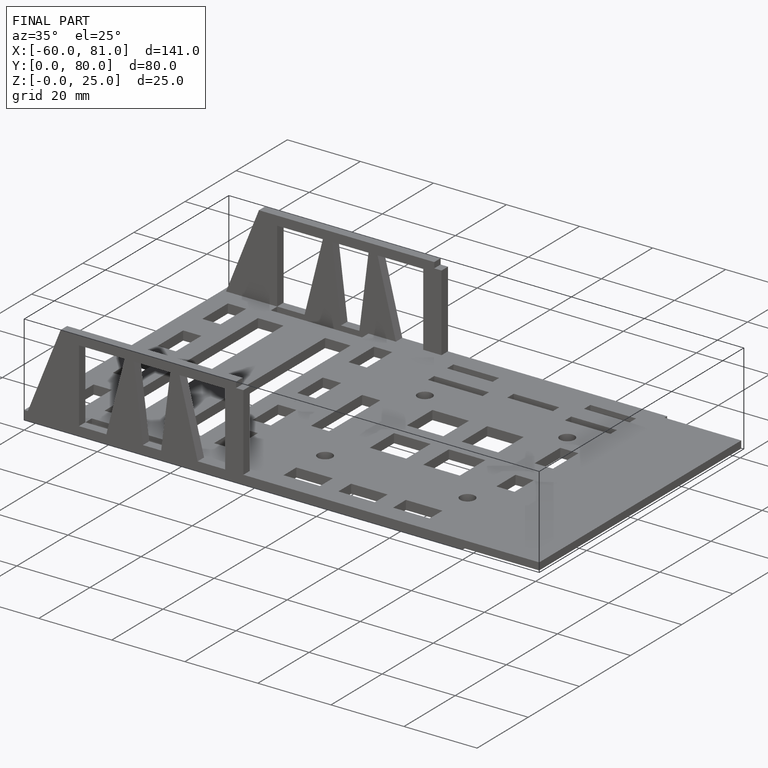
[diagram: finished part — iso view with bounding-box wireframe]
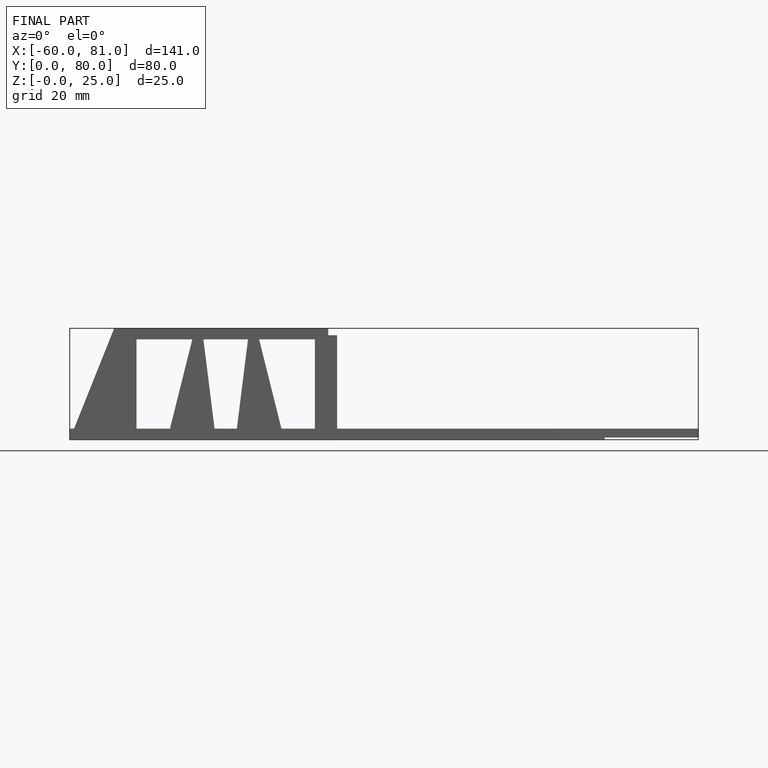
[diagram: finished part — front view with bounding-box wireframe]
